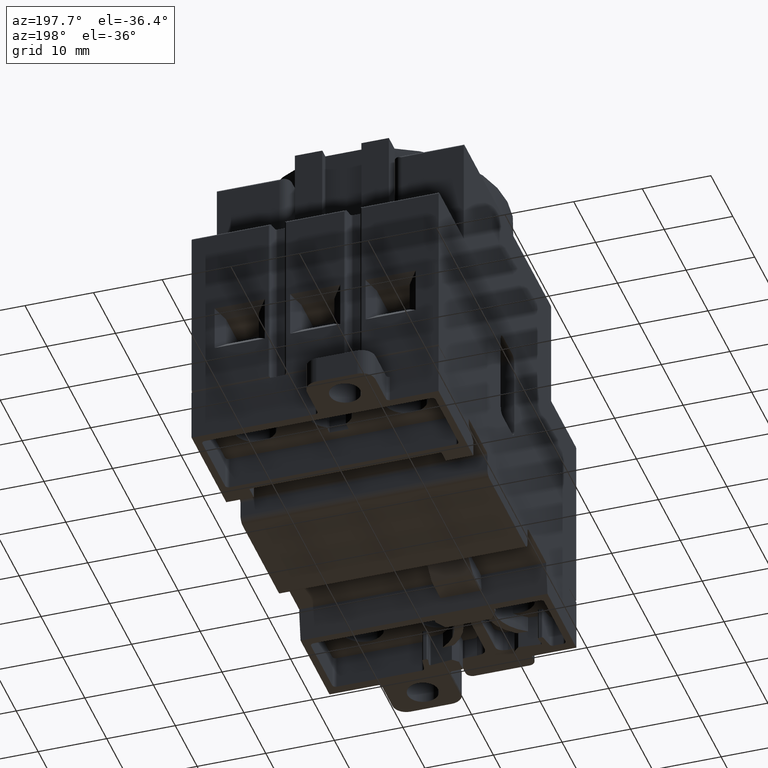
[diagram: clean part render]
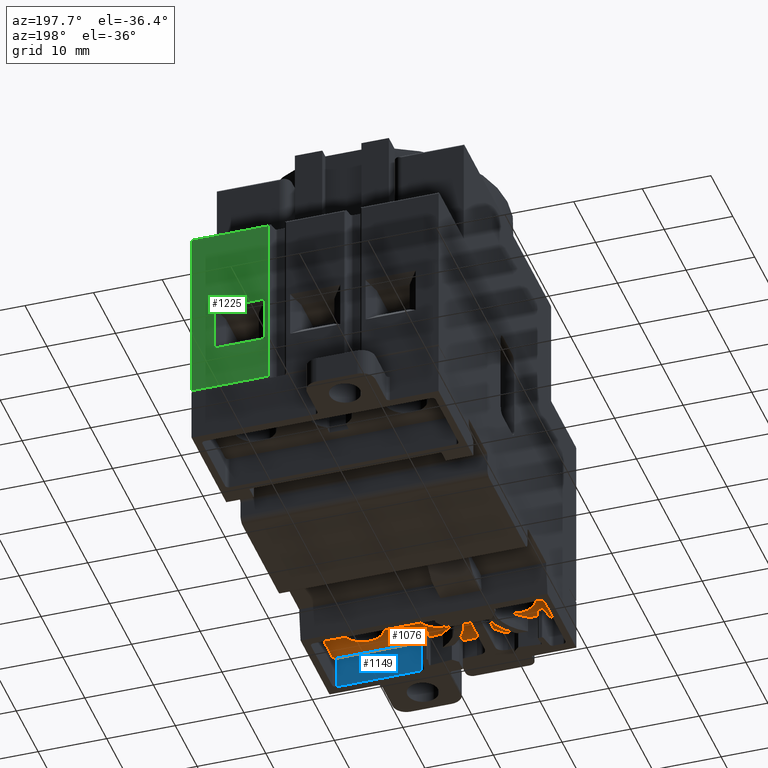
[diagram: same view with three faces highlighted in distinct colors, each labeled with its STEP entity id]
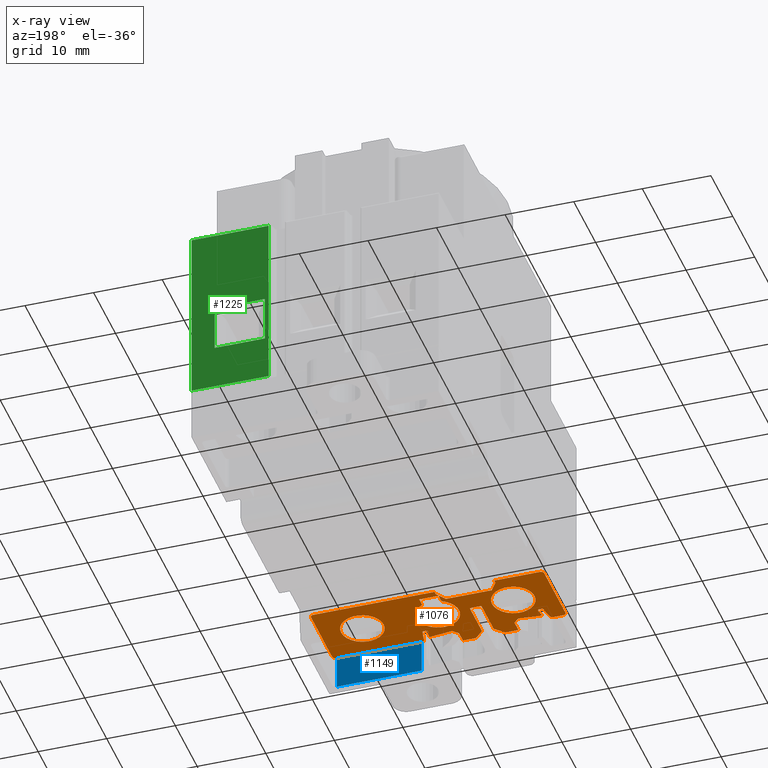
[diagram: x-ray of the same camera — body ghosted, the three highlighted faces saturated]
A machine part, auxiliary view with three faces highlighted in distinct colors.
The next image is the same camera in x-ray (body ghosted, the three faces saturated) — at least one of them is partly hidden behind the body in this view.
Their STEP definitions:

[orange] entity #1076 — the highlighted planar face has unit normal (0, 0, -1).
#1076=ADVANCED_FACE('',(#1962,#1963,#1964,#1965),#1594,.T.);
#1594=PLANE('',#10083);
#1962=FACE_BOUND('',#2070,.T.);
#1963=FACE_BOUND('',#2071,.T.);
#1964=FACE_BOUND('',#2072,.T.);
#1965=FACE_BOUND('',#2073,.T.);
#2070=EDGE_LOOP('',(#2937));
#2071=EDGE_LOOP('',(#2938,#2939,#2940,#2941,#2942,#2943,#2944,#2945,#2946,
#2947,#2948,#2949,#2950,#2951,#2952,#2953,#2954,#2955,#2956,#2957,#2958,
#2959,#2960,#2961,#2962,#2963,#2964,#2965,#2966,#2967,#2968,#2969,#2970,
#2971,#2972,#2973,#2974,#2975,#2976,#2977,#2978,#2979,#2980,#2981,#2982,
#2983,#2984,#2985));
#2072=EDGE_LOOP('',(#2986,#2987,#2988,#2989));
#2073=EDGE_LOOP('',(#2990));
#2649=CIRCLE('',#10066,3.1000000000001);
#2650=CIRCLE('',#10067,0.299999961141839);
#2651=CIRCLE('',#10068,0.300000000000275);
#2652=CIRCLE('',#10069,0.200000003250377);
#2653=CIRCLE('',#10070,0.199999999999989);
#2654=CIRCLE('',#10071,0.199999999999941);
#2655=CIRCLE('',#10072,0.49999998937005);
#2656=CIRCLE('',#10073,0.500000000000001);
#2657=CIRCLE('',#10074,0.500000000000001);
#2658=CIRCLE('',#10075,0.500000000000001);
#2659=CIRCLE('',#10076,0.500000000000001);
#2660=CIRCLE('',#10077,0.499999969796591);
#2661=CIRCLE('',#10078,0.199999999999932);
#2662=CIRCLE('',#10079,0.199999999999998);
#2663=CIRCLE('',#10080,0.200000007646708);
#2664=CIRCLE('',#10081,3.0999999999991);
#2665=CIRCLE('',#10082,3.0999999776855);
#2937=ORIENTED_EDGE('',*,*,#6643,.T.);
#2938=ORIENTED_EDGE('',*,*,#6644,.T.);
#2939=ORIENTED_EDGE('',*,*,#6645,.T.);
#2940=ORIENTED_EDGE('',*,*,#6646,.T.);
#2941=ORIENTED_EDGE('',*,*,#6647,.T.);
#2942=ORIENTED_EDGE('',*,*,#6648,.T.);
#2943=ORIENTED_EDGE('',*,*,#6649,.T.);
#2944=ORIENTED_EDGE('',*,*,#6650,.T.);
#2945=ORIENTED_EDGE('',*,*,#6651,.T.);
#2946=ORIENTED_EDGE('',*,*,#6652,.T.);
#2947=ORIENTED_EDGE('',*,*,#6653,.T.);
#2948=ORIENTED_EDGE('',*,*,#6654,.T.);
#2949=ORIENTED_EDGE('',*,*,#6655,.T.);
#2950=ORIENTED_EDGE('',*,*,#6656,.T.);
#2951=ORIENTED_EDGE('',*,*,#6657,.T.);
#2952=ORIENTED_EDGE('',*,*,#6658,.T.);
#2953=ORIENTED_EDGE('',*,*,#6659,.T.);
#2954=ORIENTED_EDGE('',*,*,#6660,.T.);
#2955=ORIENTED_EDGE('',*,*,#6661,.T.);
#2956=ORIENTED_EDGE('',*,*,#6662,.T.);
#2957=ORIENTED_EDGE('',*,*,#6663,.T.);
#2958=ORIENTED_EDGE('',*,*,#6664,.T.);
#2959=ORIENTED_EDGE('',*,*,#6665,.T.);
#2960=ORIENTED_EDGE('',*,*,#6666,.T.);
#2961=ORIENTED_EDGE('',*,*,#6667,.T.);
#2962=ORIENTED_EDGE('',*,*,#6668,.T.);
#2963=ORIENTED_EDGE('',*,*,#6669,.T.);
#2964=ORIENTED_EDGE('',*,*,#6670,.T.);
#2965=ORIENTED_EDGE('',*,*,#6671,.T.);
#2966=ORIENTED_EDGE('',*,*,#6672,.T.);
#2967=ORIENTED_EDGE('',*,*,#6673,.T.);
#2968=ORIENTED_EDGE('',*,*,#6674,.T.);
#2969=ORIENTED_EDGE('',*,*,#6675,.T.);
#2970=ORIENTED_EDGE('',*,*,#6676,.T.);
#2971=ORIENTED_EDGE('',*,*,#6677,.T.);
#2972=ORIENTED_EDGE('',*,*,#6678,.T.);
#2973=ORIENTED_EDGE('',*,*,#6679,.T.);
#2974=ORIENTED_EDGE('',*,*,#6680,.T.);
#2975=ORIENTED_EDGE('',*,*,#6681,.T.);
#2976=ORIENTED_EDGE('',*,*,#6682,.T.);
#2977=ORIENTED_EDGE('',*,*,#6683,.T.);
#2978=ORIENTED_EDGE('',*,*,#6684,.T.);
#2979=ORIENTED_EDGE('',*,*,#6685,.T.);
#2980=ORIENTED_EDGE('',*,*,#6686,.T.);
#2981=ORIENTED_EDGE('',*,*,#6687,.T.);
#2982=ORIENTED_EDGE('',*,*,#6688,.T.);
#2983=ORIENTED_EDGE('',*,*,#6689,.T.);
#2984=ORIENTED_EDGE('',*,*,#6690,.T.);
#2985=ORIENTED_EDGE('',*,*,#6691,.T.);
#2986=ORIENTED_EDGE('',*,*,#6692,.T.);
#2987=ORIENTED_EDGE('',*,*,#6693,.T.);
#2988=ORIENTED_EDGE('',*,*,#6694,.T.);
#2989=ORIENTED_EDGE('',*,*,#6695,.T.);
#2990=ORIENTED_EDGE('',*,*,#6696,.T.);
#5715=VERTEX_POINT('',#13667);
#5716=VERTEX_POINT('',#13669);
#5717=VERTEX_POINT('',#13670);
#5718=VERTEX_POINT('',#13672);
#5719=VERTEX_POINT('',#13674);
#5720=VERTEX_POINT('',#13676);
#5721=VERTEX_POINT('',#13678);
#5722=VERTEX_POINT('',#13680);
#5723=VERTEX_POINT('',#13682);
#5724=VERTEX_POINT('',#13684);
#5725=VERTEX_POINT('',#13686);
#5726=VERTEX_POINT('',#13688);
#5727=VERTEX_POINT('',#13690);
#5728=VERTEX_POINT('',#13692);
#5729=VERTEX_POINT('',#13694);
#5730=VERTEX_POINT('',#13696);
#5731=VERTEX_POINT('',#13698);
#5732=VERTEX_POINT('',#13700);
#5733=VERTEX_POINT('',#13702);
#5734=VERTEX_POINT('',#13704);
#5735=VERTEX_POINT('',#13706);
#5736=VERTEX_POINT('',#13708);
#5737=VERTEX_POINT('',#13710);
#5738=VERTEX_POINT('',#13712);
#5739=VERTEX_POINT('',#13714);
#5740=VERTEX_POINT('',#13716);
#5741=VERTEX_POINT('',#13718);
#5742=VERTEX_POINT('',#13720);
#5743=VERTEX_POINT('',#13722);
#5744=VERTEX_POINT('',#13724);
#5745=VERTEX_POINT('',#13726);
#5746=VERTEX_POINT('',#13728);
#5747=VERTEX_POINT('',#13730);
#5748=VERTEX_POINT('',#13732);
#5749=VERTEX_POINT('',#13734);
#5750=VERTEX_POINT('',#13736);
#5751=VERTEX_POINT('',#13738);
#5752=VERTEX_POINT('',#13740);
#5753=VERTEX_POINT('',#13742);
#5754=VERTEX_POINT('',#13744);
#5755=VERTEX_POINT('',#13746);
#5756=VERTEX_POINT('',#13748);
#5757=VERTEX_POINT('',#13750);
#5758=VERTEX_POINT('',#13752);
#5759=VERTEX_POINT('',#13754);
#5760=VERTEX_POINT('',#13756);
#5761=VERTEX_POINT('',#13758);
#5762=VERTEX_POINT('',#13760);
#5763=VERTEX_POINT('',#13762);
#5764=VERTEX_POINT('',#13765);
#5765=VERTEX_POINT('',#13766);
#5766=VERTEX_POINT('',#13768);
#5767=VERTEX_POINT('',#13770);
#5768=VERTEX_POINT('',#13773);
#6643=EDGE_CURVE('',#5715,#5715,#2649,.T.);
#6644=EDGE_CURVE('',#5716,#5717,#8020,.T.);
#6645=EDGE_CURVE('',#5717,#5718,#8021,.T.);
#6646=EDGE_CURVE('',#5718,#5719,#8022,.T.);
#6647=EDGE_CURVE('',#5719,#5720,#8023,.T.);
#6648=EDGE_CURVE('',#5720,#5721,#8024,.T.);
#6649=EDGE_CURVE('',#5721,#5722,#2650,.T.);
#6650=EDGE_CURVE('',#5722,#5723,#8025,.T.);
#6651=EDGE_CURVE('',#5723,#5724,#2651,.T.);
#6652=EDGE_CURVE('',#5724,#5725,#8026,.T.);
#6653=EDGE_CURVE('',#5725,#5726,#8027,.T.);
#6654=EDGE_CURVE('',#5726,#5727,#8028,.T.);
#6655=EDGE_CURVE('',#5727,#5728,#8029,.T.);
#6656=EDGE_CURVE('',#5728,#5729,#8030,.T.);
#6657=EDGE_CURVE('',#5729,#5730,#8031,.T.);
#6658=EDGE_CURVE('',#5730,#5731,#8032,.T.);
#6659=EDGE_CURVE('',#5731,#5732,#8033,.T.);
#6660=EDGE_CURVE('',#5732,#5733,#2652,.T.);
#6661=EDGE_CURVE('',#5733,#5734,#8034,.T.);
#6662=EDGE_CURVE('',#5734,#5735,#2653,.T.);
#6663=EDGE_CURVE('',#5735,#5736,#8035,.T.);
#6664=EDGE_CURVE('',#5736,#5737,#2654,.T.);
#6665=EDGE_CURVE('',#5737,#5738,#8036,.T.);
#6666=EDGE_CURVE('',#5738,#5739,#2655,.T.);
#6667=EDGE_CURVE('',#5739,#5740,#8037,.T.);
#6668=EDGE_CURVE('',#5740,#5741,#2656,.T.);
#6669=EDGE_CURVE('',#5741,#5742,#8038,.T.);
#6670=EDGE_CURVE('',#5742,#5743,#2657,.T.);
#6671=EDGE_CURVE('',#5743,#5744,#8039,.T.);
#6672=EDGE_CURVE('',#5744,#5745,#8040,.T.);
#6673=EDGE_CURVE('',#5745,#5746,#8041,.T.);
#6674=EDGE_CURVE('',#5746,#5747,#8042,.T.);
#6675=EDGE_CURVE('',#5747,#5748,#8043,.T.);
#6676=EDGE_CURVE('',#5748,#5749,#8044,.T.);
#6677=EDGE_CURVE('',#5749,#5750,#8045,.T.);
#6678=EDGE_CURVE('',#5750,#5751,#2658,.T.);
#6679=EDGE_CURVE('',#5751,#5752,#8046,.T.);
#6680=EDGE_CURVE('',#5752,#5753,#2659,.T.);
#6681=EDGE_CURVE('',#5753,#5754,#8047,.T.);
#6682=EDGE_CURVE('',#5754,#5755,#2660,.T.);
#6683=EDGE_CURVE('',#5755,#5756,#8048,.T.);
#6684=EDGE_CURVE('',#5756,#5757,#2661,.T.);
#6685=EDGE_CURVE('',#5757,#5758,#8049,.T.);
#6686=EDGE_CURVE('',#5758,#5759,#2662,.T.);
#6687=EDGE_CURVE('',#5759,#5760,#8050,.T.);
#6688=EDGE_CURVE('',#5760,#5761,#2663,.T.);
#6689=EDGE_CURVE('',#5761,#5762,#8051,.T.);
#6690=EDGE_CURVE('',#5762,#5763,#8052,.T.);
#6691=EDGE_CURVE('',#5763,#5716,#8053,.T.);
#6692=EDGE_CURVE('',#5764,#5765,#2664,.T.);
#6693=EDGE_CURVE('',#5765,#5766,#8054,.T.);
#6694=EDGE_CURVE('',#5766,#5767,#8055,.T.);
#6695=EDGE_CURVE('',#5767,#5764,#8056,.T.);
#6696=EDGE_CURVE('',#5768,#5768,#2665,.T.);
#8020=LINE('',#13668,#9055);
#8021=LINE('',#13671,#9056);
#8022=LINE('',#13673,#9057);
#8023=LINE('',#13675,#9058);
#8024=LINE('',#13677,#9059);
#8025=LINE('',#13681,#9060);
#8026=LINE('',#13685,#9061);
#8027=LINE('',#13687,#9062);
#8028=LINE('',#13689,#9063);
#8029=LINE('',#13691,#9064);
#8030=LINE('',#13693,#9065);
#8031=LINE('',#13695,#9066);
#8032=LINE('',#13697,#9067);
#8033=LINE('',#13699,#9068);
#8034=LINE('',#13703,#9069);
#8035=LINE('',#13707,#9070);
#8036=LINE('',#13711,#9071);
#8037=LINE('',#13715,#9072);
#8038=LINE('',#13719,#9073);
#8039=LINE('',#13723,#9074);
#8040=LINE('',#13725,#9075);
#8041=LINE('',#13727,#9076);
#8042=LINE('',#13729,#9077);
#8043=LINE('',#13731,#9078);
#8044=LINE('',#13733,#9079);
#8045=LINE('',#13735,#9080);
#8046=LINE('',#13739,#9081);
#8047=LINE('',#13743,#9082);
#8048=LINE('',#13747,#9083);
#8049=LINE('',#13751,#9084);
#8050=LINE('',#13755,#9085);
#8051=LINE('',#13759,#9086);
#8052=LINE('',#13761,#9087);
#8053=LINE('',#13763,#9088);
#8054=LINE('',#13767,#9089);
#8055=LINE('',#13769,#9090);
#8056=LINE('',#13771,#9091);
#9055=VECTOR('',#10951,1.);
#9056=VECTOR('',#10952,1.);
#9057=VECTOR('',#10953,1.);
#9058=VECTOR('',#10954,1.);
#9059=VECTOR('',#10955,1.);
#9060=VECTOR('',#10958,1.);
#9061=VECTOR('',#10961,1.);
#9062=VECTOR('',#10962,1.);
#9063=VECTOR('',#10963,1.);
#9064=VECTOR('',#10964,1.);
#9065=VECTOR('',#10965,1.);
#9066=VECTOR('',#10966,1.);
#9067=VECTOR('',#10967,1.);
#9068=VECTOR('',#10968,1.);
#9069=VECTOR('',#10971,1.);
#9070=VECTOR('',#10974,1.);
#9071=VECTOR('',#10977,1.);
#9072=VECTOR('',#10980,1.);
#9073=VECTOR('',#10983,1.);
#9074=VECTOR('',#10986,1.);
#9075=VECTOR('',#10987,1.);
#9076=VECTOR('',#10988,1.);
#9077=VECTOR('',#10989,1.);
#9078=VECTOR('',#10990,1.);
#9079=VECTOR('',#10991,1.);
#9080=VECTOR('',#10992,1.);
#9081=VECTOR('',#10995,1.);
#9082=VECTOR('',#10998,1.);
#9083=VECTOR('',#11001,1.);
#9084=VECTOR('',#11004,1.);
#9085=VECTOR('',#11007,1.);
#9086=VECTOR('',#11010,1.);
#9087=VECTOR('',#11011,1.);
#9088=VECTOR('',#11012,1.);
#9089=VECTOR('',#11015,1.);
#9090=VECTOR('',#11016,1.);
#9091=VECTOR('',#11017,1.);
#10066=AXIS2_PLACEMENT_3D('',#13666,#10949,#10950);
#10067=AXIS2_PLACEMENT_3D('',#13679,#10956,#10957);
#10068=AXIS2_PLACEMENT_3D('',#13683,#10959,#10960);
#10069=AXIS2_PLACEMENT_3D('',#13701,#10969,#10970);
#10070=AXIS2_PLACEMENT_3D('',#13705,#10972,#10973);
#10071=AXIS2_PLACEMENT_3D('',#13709,#10975,#10976);
#10072=AXIS2_PLACEMENT_3D('',#13713,#10978,#10979);
#10073=AXIS2_PLACEMENT_3D('',#13717,#10981,#10982);
#10074=AXIS2_PLACEMENT_3D('',#13721,#10984,#10985);
#10075=AXIS2_PLACEMENT_3D('',#13737,#10993,#10994);
#10076=AXIS2_PLACEMENT_3D('',#13741,#10996,#10997);
#10077=AXIS2_PLACEMENT_3D('',#13745,#10999,#11000);
#10078=AXIS2_PLACEMENT_3D('',#13749,#11002,#11003);
#10079=AXIS2_PLACEMENT_3D('',#13753,#11005,#11006);
#10080=AXIS2_PLACEMENT_3D('',#13757,#11008,#11009);
#10081=AXIS2_PLACEMENT_3D('',#13764,#11013,#11014);
#10082=AXIS2_PLACEMENT_3D('',#13772,#11018,#11019);
#10083=AXIS2_PLACEMENT_3D('',#13774,#11020,#11021);
#10949=DIRECTION('',(0.,0.,1.));
#10950=DIRECTION('',(-1.,0.,0.));
#10951=DIRECTION('',(-1.,0.,0.));
#10952=DIRECTION('',(-2.01809783809683E-005,0.999999999796364,0.));
#10953=DIRECTION('',(-0.999999999999998,-6.32618470490752E-008,0.));
#10954=DIRECTION('',(-0.707106825919453,0.70710673645364,0.));
#10955=DIRECTION('',(-6.11087198667037E-008,0.999999999999998,0.));
#10956=DIRECTION('',(0.,0.,1.));
#10957=DIRECTION('',(-1.,0.,0.));
#10958=DIRECTION('',(-0.999960911849175,-0.00884164994594639,0.));
#10959=DIRECTION('',(0.,0.,1.));
#10960=DIRECTION('',(-1.,0.,0.));
#10961=DIRECTION('',(6.05455227773769E-008,-0.999999999999998,0.));
#10962=DIRECTION('',(-0.707106736453632,-0.70710682591946,0.));
#10963=DIRECTION('',(-0.999999999999998,-6.23428831982051E-008,0.));
#10964=DIRECTION('',(2.01807841931638E-005,-0.999999999796368,0.));
#10965=DIRECTION('',(-1.,0.,0.));
#10966=DIRECTION('',(-6.32618624748176E-008,0.999999999999998,0.));
#10967=DIRECTION('',(-0.719339834544052,0.694658335038265,0.));
#10968=DIRECTION('',(-0.994521889065313,-0.104528523236295,0.));
#10969=DIRECTION('',(0.,0.,-1.));
#10970=DIRECTION('',(-0.999999999999997,-6.32618599993283E-008,0.));
#10971=DIRECTION('',(0.173648143198991,0.984807759089835,0.));
#10972=DIRECTION('',(0.,0.,1.));
#10973=DIRECTION('',(-0.999999999999997,-6.32618610274561E-008,0.));
#10974=DIRECTION('',(-0.999999999999997,-7.74669999654152E-008,0.));
#10975=DIRECTION('',(0.,0.,1.));
#10976=DIRECTION('',(-0.999999999999996,-6.32618610274714E-008,0.));
#10977=DIRECTION('',(-0.173648121157537,-0.984807762976337,0.));
#10978=DIRECTION('',(0.,0.,-1.));
#10979=DIRECTION('',(-0.999999999999997,-6.32618693112875E-008,0.));
#10980=DIRECTION('',(-0.999999999999999,-4.71628375729506E-008,0.));
#10981=DIRECTION('',(0.,0.,-1.));
#10982=DIRECTION('',(-0.999999999999999,-6.32618679663465E-008,0.));
#10983=DIRECTION('',(-6.32618687625458E-008,0.999999999999998,0.));
#10984=DIRECTION('',(0.,0.,-1.));
#10985=DIRECTION('',(-0.999999999999999,-6.32618679663465E-008,0.));
#10986=DIRECTION('',(0.999999999999998,6.32618709673475E-008,0.));
#10987=DIRECTION('',(6.32618782449127E-008,-0.999999999999998,0.));
#10988=DIRECTION('',(0.548357012134833,-0.836244334654985,0.));
#10989=DIRECTION('',(0.999999999999998,6.32618727460206E-008,0.));
#10990=DIRECTION('',(0.548356936697551,0.836244384122056,0.));
#10991=DIRECTION('',(-6.32618790709715E-008,0.999999999999998,0.));
#10992=DIRECTION('',(0.999999999999998,6.32618682651596E-008,0.));
#10993=DIRECTION('',(0.,0.,-1.));
#10994=DIRECTION('',(-0.999999999999999,-6.32618679663465E-008,0.));
#10995=DIRECTION('',(6.32618684557721E-008,-0.999999999999998,0.));
#10996=DIRECTION('',(0.,0.,-1.));
#10997=DIRECTION('',(-0.999999999999999,-6.32618679663465E-008,0.));
#10998=DIRECTION('',(-0.999999999999998,-6.32618672617057E-008,0.));
#10999=DIRECTION('',(0.,0.,-1.));
#11000=DIRECTION('',(-0.999999999999998,-6.32618648489006E-008,0.));
#11001=DIRECTION('',(-0.1736482338614,0.984807743103605,0.));
#11002=DIRECTION('',(0.,0.,1.));
#11003=DIRECTION('',(-0.999999999999999,-6.32618610274741E-008,0.));
#11004=DIRECTION('',(-0.999999999999997,-7.74669955478296E-008,0.));
#11005=DIRECTION('',(0.,0.,1.));
#11006=DIRECTION('',(-0.999999999999997,-6.32618610274533E-008,0.));
#11007=DIRECTION('',(0.173648246948834,-0.984807740795936,0.));
#11008=DIRECTION('',(0.,0.,-1.));
#11009=DIRECTION('',(-0.999999999999999,-6.32618759559619E-008,0.));
#11010=DIRECTION('',(-0.994521902017317,0.104528400006203,0.));
#11011=DIRECTION('',(-0.719339781641256,-0.694658389820716,0.));
#11012=DIRECTION('',(6.32618692569173E-008,-0.999999999999998,0.));
#11013=DIRECTION('',(0.,0.,1.));
#11014=DIRECTION('',(-1.,0.,0.));
#11015=DIRECTION('',(-6.32618673132519E-008,0.999999999999998,0.));
#11016=DIRECTION('',(-0.999999999999998,-6.32618544266424E-008,0.));
#11017=DIRECTION('',(6.3261867313252E-008,-0.999999999999998,0.));
#11018=DIRECTION('',(0.,0.,1.));
#11019=DIRECTION('',(-1.,0.,0.));
#11020=DIRECTION('',(0.,0.,-1.));
#11021=DIRECTION('',(-1.,0.,0.));
#13666=CARTESIAN_POINT('',(11.0000020910751,-24.5799209481712,-49.871015653614));
#13667=CARTESIAN_POINT('',(7.90000209107504,-24.5799209481712,-49.871015653614));
#13668=CARTESIAN_POINT('',(-18.,-31.5074194557866,-49.871015653614));
#13669=CARTESIAN_POINT('',(-1.4508575539066,-31.5074194557866,-49.871015653614));
#13670=CARTESIAN_POINT('',(-3.17223596994798,-31.5074194557866,-49.871015653614));
#13671=CARTESIAN_POINT('',(-3.17228509598499,-29.0731451571672,-49.871015653614));
#13672=CARTESIAN_POINT('',(-3.17223611967498,-31.5000002418799,-49.871015653614));
#13673=CARTESIAN_POINT('',(-13.5078081341868,-31.5000008996854,-49.871015653614));
#13674=CARTESIAN_POINT('',(-3.35085718504035,-31.5000002571379,-49.871015653614));
#13675=CARTESIAN_POINT('',(-9.64265664492031,-25.2082016063231,-49.871015653614));
#13676=CARTESIAN_POINT('',(-4.65085747924689,-30.2000001404153,-49.871015653614));
#13677=CARTESIAN_POINT('',(-4.65085756109786,-29.0733531969004,-49.871015653614));
#13678=CARTESIAN_POINT('',(-4.650857822237,-24.800000115602,-49.871015653614));
#13679=CARTESIAN_POINT('',(-4.9508577833863,-24.8000001345805,-49.871015653614));
#13680=CARTESIAN_POINT('',(-4.75796402309342,-24.5702350938864,-49.871015653614));
#13681=CARTESIAN_POINT('',(-13.546937713028,-24.6479471602579,-49.871015653614));
#13682=CARTESIAN_POINT('',(-6.25853307843673,-24.583503118816,-49.871015653614));
#13683=CARTESIAN_POINT('',(-6.05085782224571,-24.8000002041686,-49.871015653614));
#13684=CARTESIAN_POINT('',(-6.35085782224598,-24.8000002231471,-49.871015653614));
#13685=CARTESIAN_POINT('',(-6.35085756350172,-29.073353304816,-49.871015653614));
#13686=CARTESIAN_POINT('',(-6.3508574952883,-30.2000002349574,-49.871015653614));
#13687=CARTESIAN_POINT('',(-9.36600919032233,-33.2151523114799,-49.871015653614));
#13688=CARTESIAN_POINT('',(-7.65085762501394,-31.500000529164,-49.871015653614));
#13689=CARTESIAN_POINT('',(-13.5078081364168,-31.5000009033545,-49.871015653614));
#13690=CARTESIAN_POINT('',(-7.84403612110909,-31.5000005502586,-49.871015653614));
#13691=CARTESIAN_POINT('',(-7.84408509505136,-29.0732394397618,-49.871015653614));
#13692=CARTESIAN_POINT('',(-7.84403604624943,-31.5074194557866,-49.871015653614));
#13693=CARTESIAN_POINT('',(-18.,-31.5074194557866,-49.871015653614));
#13694=CARTESIAN_POINT('',(-9.5508574835453,-31.5074194557866,-49.871015653614));
#13695=CARTESIAN_POINT('',(-9.55085741692131,-32.5605656898333,-49.871015653614));
#13696=CARTESIAN_POINT('',(-9.55085759788598,-29.7000006787389,-49.871015653614));
#13697=CARTESIAN_POINT('',(-9.55085759788598,-29.7000006787389,-49.871015653614));
#13698=CARTESIAN_POINT('',(-10.3366657013935,-28.9411546888069,-49.871015653614));
#13699=CARTESIAN_POINT('',(-10.3366657013935,-28.9411546888069,-49.871015653614));
#13700=CARTESIAN_POINT('',(-13.486902582711,-29.2722581191779,-49.871015653614));
#13701=CARTESIAN_POINT('',(-13.507808287701,-29.0733537381373,-49.871015653614));
#13702=CARTESIAN_POINT('',(-13.7047698427198,-29.0386241089325,-49.871015653614));
#13703=CARTESIAN_POINT('',(-13.7047698427194,-29.0386241089316,-49.871015653614));
#13704=CARTESIAN_POINT('',(-13.5173802178188,-27.975884518543,-49.871015653614));
#13705=CARTESIAN_POINT('',(-13.7143417696359,-27.9411548899049,-49.871015653614));
#13706=CARTESIAN_POINT('',(-13.7143417822883,-27.7411548899049,-49.871015653614));
#13707=CARTESIAN_POINT('',(-13.7143417851258,-27.7411548899078,-49.871015653614));
#13708=CARTESIAN_POINT('',(-14.1205124618792,-27.7411549213726,-49.871015653614));
#13709=CARTESIAN_POINT('',(-14.1205124463747,-27.9411549213698,-49.871015653614));
#13710=CARTESIAN_POINT('',(-14.3174739989699,-27.9064252971385,-49.871015653614));
#13711=CARTESIAN_POINT('',(-14.3174739989776,-27.906425297141,-49.871015653614));
#13712=CARTESIAN_POINT('',(-14.631406411864,-29.6868250803319,-49.871015653614));
#13713=CARTESIAN_POINT('',(-15.1238102828867,-29.6000010216042,-49.871015653614));
#13714=CARTESIAN_POINT('',(-15.1238102593046,-30.1000010109743,-49.871015653614));
#13715=CARTESIAN_POINT('',(-15.1238102593029,-30.100001010974,-49.871015653614));
#13716=CARTESIAN_POINT('',(-16.499997545075,-30.1000010758789,-49.871015653614));
#13717=CARTESIAN_POINT('',(-16.4999975686588,-29.6000010758789,-49.871015653614));
#13718=CARTESIAN_POINT('',(-16.9999975686588,-29.6000011155587,-49.871015653614));
#13719=CARTESIAN_POINT('',(-16.9999975686588,-29.6000011075098,-49.871015653614));
#13720=CARTESIAN_POINT('',(-16.9999981791358,-19.9500011083087,-49.871015653614));
#13721=CARTESIAN_POINT('',(-16.4999981791358,-19.9500010766777,-49.871015653614));
#13722=CARTESIAN_POINT('',(-16.4999982107667,-19.4500010766777,-49.871015653614));
#13723=CARTESIAN_POINT('',(-16.4999982107667,-19.4500010766778,-49.871015653614));
#13724=CARTESIAN_POINT('',(-9.85085822822043,-19.4500006560407,-49.871015653614));
#13725=CARTESIAN_POINT('',(-9.85085822822043,-19.4500006560407,-49.871015653614));
#13726=CARTESIAN_POINT('',(-9.85085819500794,-19.975000663973,-49.871015653614));
#13727=CARTESIAN_POINT('',(-9.85085819500794,-19.975000663973,-49.871015653614));
#13728=CARTESIAN_POINT('',(-8.85085810605692,-21.5000006011201,-49.871015653614));
#13729=CARTESIAN_POINT('',(-8.85085810605692,-21.5000006011201,-49.871015653614));
#13730=CARTESIAN_POINT('',(-2.15085814062075,-21.5000001772656,-49.871015653614));
#13731=CARTESIAN_POINT('',(-2.15085814062076,-21.5000001772656,-49.871015653614));
#13732=CARTESIAN_POINT('',(-1.1508581654269,-19.9750001135948,-49.871015653614));
#13733=CARTESIAN_POINT('',(-1.1508581654269,-19.9750001135948,-49.871015653614));
#13734=CARTESIAN_POINT('',(-1.15085819863938,-19.4500001056625,-49.871015653614));
#13735=CARTESIAN_POINT('',(-1.15085819863938,-19.4500001056625,-49.871015653614));
#13736=CARTESIAN_POINT('',(16.5000017710142,-19.4499989890361,-49.871015653614));
#13737=CARTESIAN_POINT('',(16.5000018026452,-19.9499989890361,-49.871015653614));
#13738=CARTESIAN_POINT('',(17.0000018026452,-19.9499989574052,-49.871015653614));
#13739=CARTESIAN_POINT('',(17.0000018026451,-19.9499989574052,-49.871015653614));
#13740=CARTESIAN_POINT('',(17.0000024131222,-29.5999989485591,-49.871015653614));
#13741=CARTESIAN_POINT('',(16.5000024131222,-29.59999898019,-49.871015653614));
#13742=CARTESIAN_POINT('',(16.5000024447531,-30.09999898019,-49.871015653614));
#13743=CARTESIAN_POINT('',(16.5000024447531,-30.09999898019,-49.871015653614));
#13744=CARTESIAN_POINT('',(4.12209509928871,-30.0999997632396,-49.871015653614));
#13745=CARTESIAN_POINT('',(4.12209506765778,-29.5999997934421,-49.871015653614));
#13746=CARTESIAN_POINT('',(3.62969122585051,-29.6868239051279,-49.871015653614));
#13747=CARTESIAN_POINT('',(3.62969122583951,-29.6868239051282,-49.871015653614));
#13748=CARTESIAN_POINT('',(3.31575861279232,-27.9064241782391,-49.871015653614));
#13749=CARTESIAN_POINT('',(3.11879706417607,-27.9411538250091,-49.871015653614));
#13750=CARTESIAN_POINT('',(3.1187970515237,-27.7411538250092,-49.871015653614));
#13751=CARTESIAN_POINT('',(3.1187970486861,-27.741153825012,-49.871015653614));
#13752=CARTESIAN_POINT('',(2.7126263935568,-27.7411538564768,-49.871015653614));
#13753=CARTESIAN_POINT('',(2.71262640906138,-27.941153856474,-49.871015653614));
#13754=CARTESIAN_POINT('',(2.51566486090209,-27.9758835058632,-49.871015653614));
#13755=CARTESIAN_POINT('',(2.51566486089624,-27.9758835058632,-49.871015653614));
#13756=CARTESIAN_POINT('',(2.70305459738312,-29.0386230743908,-49.871015653614));
#13757=CARTESIAN_POINT('',(2.50609304169457,-29.0733527251044,-49.871015653614));
#13758=CARTESIAN_POINT('',(2.4851873608942,-29.2722571131127,-49.871015653614));
#13759=CARTESIAN_POINT('',(2.48518736089585,-29.2722571131193,-49.871015653614));
#13760=CARTESIAN_POINT('',(-0.665049524610068,-28.9411540769624,-49.871015653614));
#13761=CARTESIAN_POINT('',(-0.665049524610069,-28.9411540769624,-49.871015653614));
#13762=CARTESIAN_POINT('',(-1.45085761131163,-29.7000001663178,-49.871015653614));
#13763=CARTESIAN_POINT('',(-1.45085766824732,-29.7000001663178,-49.871015653614));
#13764=CARTESIAN_POINT('',(2.0910751246106E-006,-24.5799216440517,-49.871015653614));
#13765=CARTESIAN_POINT('',(-1.39999805187846,-21.8140583566764,-49.871015653614));
#13766=CARTESIAN_POINT('',(1.40000190166599,-21.8140582109915,-49.871015653614));
#13767=CARTESIAN_POINT('',(1.40000237045728,-29.0733527950414,-49.871015653614));
#13768=CARTESIAN_POINT('',(1.40000182809096,-20.4999999601549,-49.871015653614));
#13769=CARTESIAN_POINT('',(-13.5078088300672,-20.5000009032506,-49.871015653614));
#13770=CARTESIAN_POINT('',(-1.39999813500823,-20.5000001372881,-49.871015653614));
#13771=CARTESIAN_POINT('',(-1.39999759264192,-29.0733529721746,-49.871015653614));
#13772=CARTESIAN_POINT('',(-10.9999979089248,-24.5799223399323,-49.871015653614));
#13773=CARTESIAN_POINT('',(-14.0999978866103,-24.5799223399323,-49.871015653614));
#13774=CARTESIAN_POINT('',(-13.507808287701,-29.0733537381373,-49.871015653614));

[blue] entity #1149 — the highlighted planar face has unit normal (0, -1, 0).
#666=FACE_OUTER_BOUND('',#2156,.T.);
#1149=ADVANCED_FACE('',(#666),#1641,.F.);
#1641=PLANE('',#10203);
#2156=EDGE_LOOP('',(#3387,#3388,#3389,#3390));
#3387=ORIENTED_EDGE('',*,*,#6880,.F.);
#3388=ORIENTED_EDGE('',*,*,#6681,.F.);
#3389=ORIENTED_EDGE('',*,*,#6879,.T.);
#3390=ORIENTED_EDGE('',*,*,#6791,.F.);
#5753=VERTEX_POINT('',#13742);
#5754=VERTEX_POINT('',#13744);
#5844=VERTEX_POINT('',#13973);
#5845=VERTEX_POINT('',#13975);
#6681=EDGE_CURVE('',#5753,#5754,#8047,.T.);
#6791=EDGE_CURVE('',#5844,#5845,#8120,.T.);
#6879=EDGE_CURVE('',#5753,#5845,#8190,.T.);
#6880=EDGE_CURVE('',#5754,#5844,#8191,.T.);
#8047=LINE('',#13743,#9082);
#8120=LINE('',#13974,#9155);
#8190=LINE('',#14152,#9225);
#8191=LINE('',#14154,#9226);
#9082=VECTOR('',#10998,1.);
#9155=VECTOR('',#11177,1.);
#9225=VECTOR('',#11391,1.);
#9226=VECTOR('',#11394,1.);
#10203=AXIS2_PLACEMENT_3D('',#14155,#11395,#11396);
#10998=DIRECTION('',(-0.999999999999998,-6.32618672617057E-008,0.));
#11177=DIRECTION('',(0.999999999999998,6.32618672617057E-008,0.));
#11391=DIRECTION('',(0.,0.,-1.));
#11394=DIRECTION('',(0.,0.,-1.));
#11395=DIRECTION('',(6.32618672617057E-008,-0.999999999999998,0.));
#11396=DIRECTION('',(0.999999999999998,6.32618672620489E-008,0.));
#13742=CARTESIAN_POINT('',(16.5000024447531,-30.09999898019,-49.871015653614));
#13743=CARTESIAN_POINT('',(16.5000024447531,-30.09999898019,-49.871015653614));
#13744=CARTESIAN_POINT('',(4.12209509928871,-30.0999997632396,-49.871015653614));
#13973=CARTESIAN_POINT('',(4.12209509928871,-30.0999997632396,-54.790478662825));
#13974=CARTESIAN_POINT('',(-17.9999992522983,-30.1000011627246,-54.790478662825));
#13975=CARTESIAN_POINT('',(16.5000024447531,-30.09999898019,-54.790478662825));
#14152=CARTESIAN_POINT('',(16.5000024447531,-30.09999898019,-49.871015653614));
#14154=CARTESIAN_POINT('',(4.12209509928871,-30.0999997632396,-49.871015653614));
#14155=CARTESIAN_POINT('',(16.5000024447531,-30.09999898019,-49.871015653614));

[green] entity #1225 — the highlighted planar face has unit normal (0, 1, -0).
#575=B_SPLINE_CURVE_WITH_KNOTS('',3,(#15290,#15291,#15292,#15293,#15294,
#15295,#15296),.UNSPECIFIED.,.F.,.F.,(4,3,4),(0.,0.996093749999486,1.),.UNSPECIFIED.);
#1225=ADVANCED_FACE('',(#2022,#2023),#1690,.T.);
#1690=PLANE('',#10365);
#2022=FACE_BOUND('',#2253,.T.);
#2023=FACE_BOUND('',#2254,.T.);
#2253=EDGE_LOOP('',(#3849,#3850,#3851,#3852));
#2254=EDGE_LOOP('',(#3853,#3854,#3855,#3856));
#3849=ORIENTED_EDGE('',*,*,#7197,.T.);
#3850=ORIENTED_EDGE('',*,*,#7198,.T.);
#3851=ORIENTED_EDGE('',*,*,#7199,.T.);
#3852=ORIENTED_EDGE('',*,*,#7200,.T.);
#3853=ORIENTED_EDGE('',*,*,#7201,.F.);
#3854=ORIENTED_EDGE('',*,*,#7202,.T.);
#3855=ORIENTED_EDGE('',*,*,#7203,.F.);
#3856=ORIENTED_EDGE('',*,*,#7195,.F.);
#6131=VERTEX_POINT('',#15277);
#6132=VERTEX_POINT('',#15279);
#6133=VERTEX_POINT('',#15283);
#6134=VERTEX_POINT('',#15284);
#6135=VERTEX_POINT('',#15286);
#6136=VERTEX_POINT('',#15288);
#6137=VERTEX_POINT('',#15297);
#6138=VERTEX_POINT('',#15299);
#7195=EDGE_CURVE('',#6131,#6132,#8389,.T.);
#7197=EDGE_CURVE('',#6133,#6134,#8390,.T.);
#7198=EDGE_CURVE('',#6134,#6135,#8391,.T.);
#7199=EDGE_CURVE('',#6135,#6136,#8392,.T.);
#7200=EDGE_CURVE('',#6136,#6133,#8393,.T.);
#7201=EDGE_CURVE('',#6137,#6131,#575,.T.);
#7202=EDGE_CURVE('',#6137,#6138,#8394,.T.);
#7203=EDGE_CURVE('',#6132,#6138,#8395,.T.);
#8389=LINE('',#15278,#9424);
#8390=LINE('',#15282,#9425);
#8391=LINE('',#15285,#9426);
#8392=LINE('',#15287,#9427);
#8393=LINE('',#15289,#9428);
#8394=LINE('',#15298,#9429);
#8395=LINE('',#15300,#9430);
#9424=VECTOR('',#11912,1.);
#9425=VECTOR('',#11917,1.);
#9426=VECTOR('',#11918,1.);
#9427=VECTOR('',#11919,1.);
#9428=VECTOR('',#11920,1.);
#9429=VECTOR('',#11921,1.);
#9430=VECTOR('',#11922,1.);
#10365=AXIS2_PLACEMENT_3D('',#15301,#11923,#11924);
#11912=DIRECTION('',(1.,0.,0.));
#11917=DIRECTION('',(-1.61369625672261E-015,-1.56004692388365E-010,-1.));
#11918=DIRECTION('',(1.,0.,0.));
#11919=DIRECTION('',(-1.61369625672261E-015,1.56004692388365E-010,1.));
#11920=DIRECTION('',(-1.,0.,0.));
#11921=DIRECTION('',(1.,0.,0.));
#11922=DIRECTION('',(0.,1.56004692388365E-010,1.));
#11923=DIRECTION('',(0.,1.,-1.56004692388365E-010));
#11924=DIRECTION('',(0.,1.56004695273104E-010,1.));
#15277=CARTESIAN_POINT('',(6.79310455028911,31.4498121514089,-46.5954847551173));
#15278=CARTESIAN_POINT('',(-18.,31.4498121514091,-46.595484755046));
#15279=CARTESIAN_POINT('',(18.,31.4498121514091,-46.595484755046));
#15282=CARTESIAN_POINT('',(7.35001345743502,31.4498121526362,-38.727981686095));
#15283=CARTESIAN_POINT('',(7.35001345743503,31.4498121535021,-33.177981686095));
#15284=CARTESIAN_POINT('',(7.35001345743502,31.4498121524412,-39.977981686095));
#15285=CARTESIAN_POINT('',(13.400013457435,31.4498121524412,-39.977981686095));
#15286=CARTESIAN_POINT('',(14.650013457435,31.4498121524412,-39.977981686095));
#15287=CARTESIAN_POINT('',(14.650013457435,31.4498121533071,-34.427981686095));
#15288=CARTESIAN_POINT('',(14.650013457435,31.4498121535021,-33.177981686095));
#15289=CARTESIAN_POINT('',(8.60001345743503,31.4498121535021,-33.177981686095));
#15290=CARTESIAN_POINT('',(6.79310474846606,31.4498121593709,-20.665484755138));
#15291=CARTESIAN_POINT('',(6.79310471503475,31.4498121580278,-29.2750550676316));
#15292=CARTESIAN_POINT('',(6.79310458411317,31.4498121527678,-37.8846253801253));
#15293=CARTESIAN_POINT('',(6.79310455068241,31.4498121514247,-46.4941956926189));
#15294=CARTESIAN_POINT('',(6.79310455055131,31.4498121514194,-46.5279587134517));
#15295=CARTESIAN_POINT('',(6.79310455042021,31.4498121514141,-46.5617217342845));
#15296=CARTESIAN_POINT('',(6.79310455028911,31.4498121514089,-46.5954847551173));
#15297=CARTESIAN_POINT('',(6.79310474846606,31.4498121593709,-20.665484755138));
#15298=CARTESIAN_POINT('',(-18.,31.4498121554541,-20.665484755138));
#15299=CARTESIAN_POINT('',(18.,31.4498121554541,-20.665484755138));
#15300=CARTESIAN_POINT('',(18.,31.4498121514089,-46.595484755138));
#15301=CARTESIAN_POINT('',(-18.,31.4498121514089,-46.595484755138));